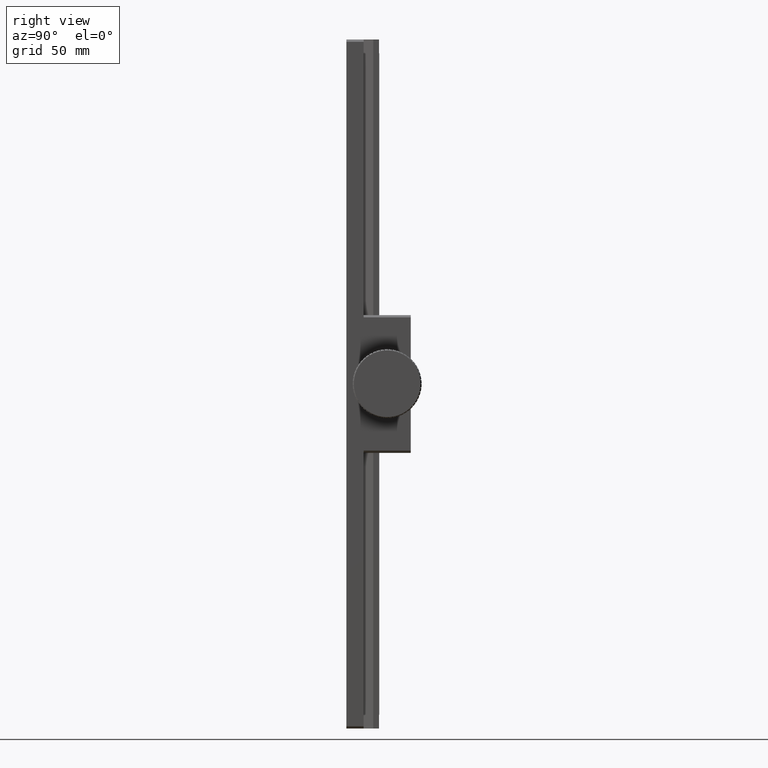
[diagram: clean part render]
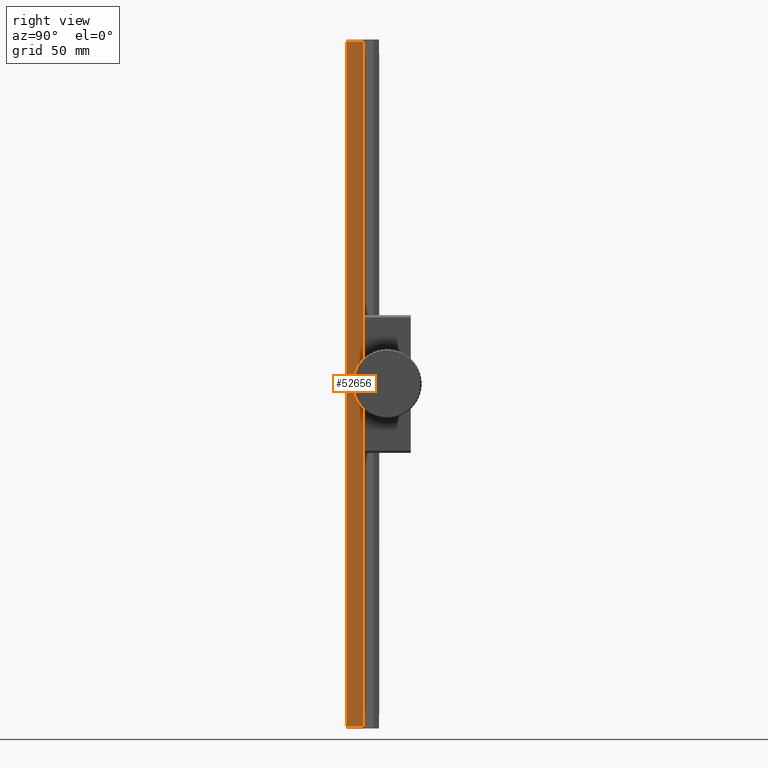
[diagram: same view with one face highlighted and labeled with its STEP entity id]
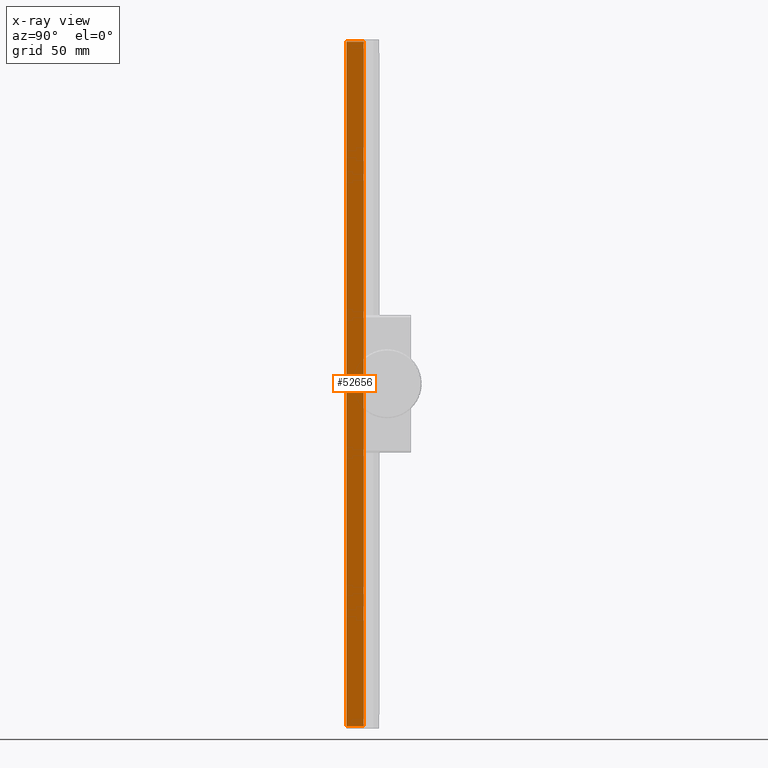
[diagram: x-ray of the same camera — body ghosted, the highlighted face saturated]
A machine part, right view. The second image highlights one B-rep face of the part: STEP entity #52656.
The next image is the same camera in x-ray: the body ghosted, the highlighted face saturated — about 0% of this face is hidden behind the body in this view.
In plain terms, the highlighted planar face has unit normal (-1, -0, 0).
Its self-contained STEP definition (entity closure, byte-faithful):
#4363 = VERTEX_POINT ( 'NONE', #55194 ) ;
#4807 = VERTEX_POINT ( 'NONE', #17915 ) ;
#6259 = DIRECTION ( 'NONE',  ( -0.000000000000000000, -0.000000000000000000, -1.000000000000000000 ) ) ;
#10416 = CARTESIAN_POINT ( 'NONE',  ( 142.9082209827905956, 59.02535012998673380, 213.1048062710991644 ) ) ;
#14311 = CARTESIAN_POINT ( 'NONE',  ( 142.9082209827905956, 59.02535012998673380, 214.1048062710991644 ) ) ;
#17915 = CARTESIAN_POINT ( 'NONE',  ( 142.9082209827906524, 51.52535012998672670, -84.89519372890087823 ) ) ;
#19304 = DIRECTION ( 'NONE',  ( 6.982962677686266711E-15, -1.000000000000000000, 0.000000000000000000 ) ) ;
#19725 = DIRECTION ( 'NONE',  ( -6.982962677686266711E-15, 1.000000000000000000, -0.000000000000000000 ) ) ;
#21331 = FACE_OUTER_BOUND ( 'NONE', #71296, .T. ) ;
#21460 = ORIENTED_EDGE ( 'NONE', *, *, #25974, .F. ) ;
#25974 = EDGE_CURVE ( 'NONE', #51987, #4807, #75729, .T. ) ;
#28148 = EDGE_CURVE ( 'NONE', #78712, #4363, #67335, .T. ) ;
#30104 = DIRECTION ( 'NONE',  ( 6.982962677686266711E-15, -1.000000000000000000, 0.000000000000000000 ) ) ;
#34946 = ORIENTED_EDGE ( 'NONE', *, *, #28148, .F. ) ;
#37109 = LINE ( 'NONE', #14311, #99842 ) ;
#37368 = CARTESIAN_POINT ( 'NONE',  ( 142.9082209827906524, 51.52535012998673380, 213.1048062710991644 ) ) ;
#47621 = LINE ( 'NONE', #62649, #53650 ) ;
#50326 = CARTESIAN_POINT ( 'NONE',  ( 142.9082209827905956, 59.02535012998673380, -84.89519372890083559 ) ) ;
#51987 = VERTEX_POINT ( 'NONE', #50326 ) ;
#52526 = VECTOR ( 'NONE', #19304, 1000.000000000000000 ) ;
#52656 = ADVANCED_FACE ( 'NONE', ( #21331 ), #60150, .F. ) ;
#53650 = VECTOR ( 'NONE', #6259, 1000.000000000000000 ) ;
#53902 = CARTESIAN_POINT ( 'NONE',  ( 142.9082209827905956, 59.02535012998673380, 214.1048062710991644 ) ) ;
#55194 = CARTESIAN_POINT ( 'NONE',  ( 142.9082209827905956, 59.02535012998673380, 213.1048062710991644 ) ) ;
#55847 = VECTOR ( 'NONE', #19725, 1000.000000000000000 ) ;
#60150 = PLANE ( 'NONE',  #85861 ) ;
#62649 = CARTESIAN_POINT ( 'NONE',  ( 142.9082209827906524, 51.52535012998673380, 214.1048062710991644 ) ) ;
#67335 = LINE ( 'NONE', #10416, #55847 ) ;
#67673 = DIRECTION ( 'NONE',  ( 0.000000000000000000, -0.000000000000000000, -1.000000000000000000 ) ) ;
#67946 = CARTESIAN_POINT ( 'NONE',  ( 142.9082209827905956, 59.02535012998673380, -84.89519372890083559 ) ) ;
#71296 = EDGE_LOOP ( 'NONE', ( #21460, #78190, #34946, #89899 ) ) ;
#75002 = EDGE_CURVE ( 'NONE', #4363, #51987, #37109, .T. ) ;
#75729 = LINE ( 'NONE', #67946, #52526 ) ;
#76217 = DIRECTION ( 'NONE',  ( -1.000000000000000000, -6.982962677686266711E-15, 0.000000000000000000 ) ) ;
#78190 = ORIENTED_EDGE ( 'NONE', *, *, #75002, .F. ) ;
#78712 = VERTEX_POINT ( 'NONE', #37368 ) ;
#85861 = AXIS2_PLACEMENT_3D ( 'NONE', #53902, #76217, #30104 ) ;
#89899 = ORIENTED_EDGE ( 'NONE', *, *, #95659, .T. ) ;
#95659 = EDGE_CURVE ( 'NONE', #78712, #4807, #47621, .T. ) ;
#99842 = VECTOR ( 'NONE', #67673, 1000.000000000000000 ) ;